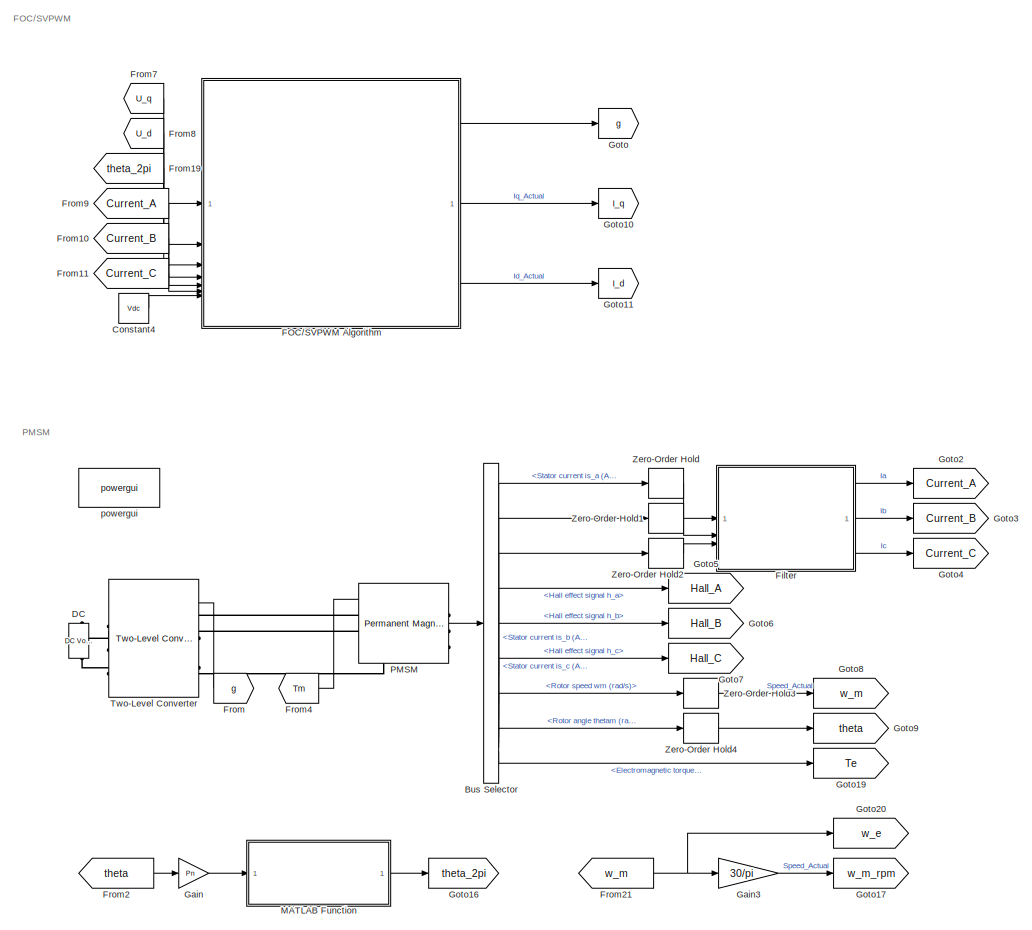
[diagram: root canvas - part 1/2, right side, full height]
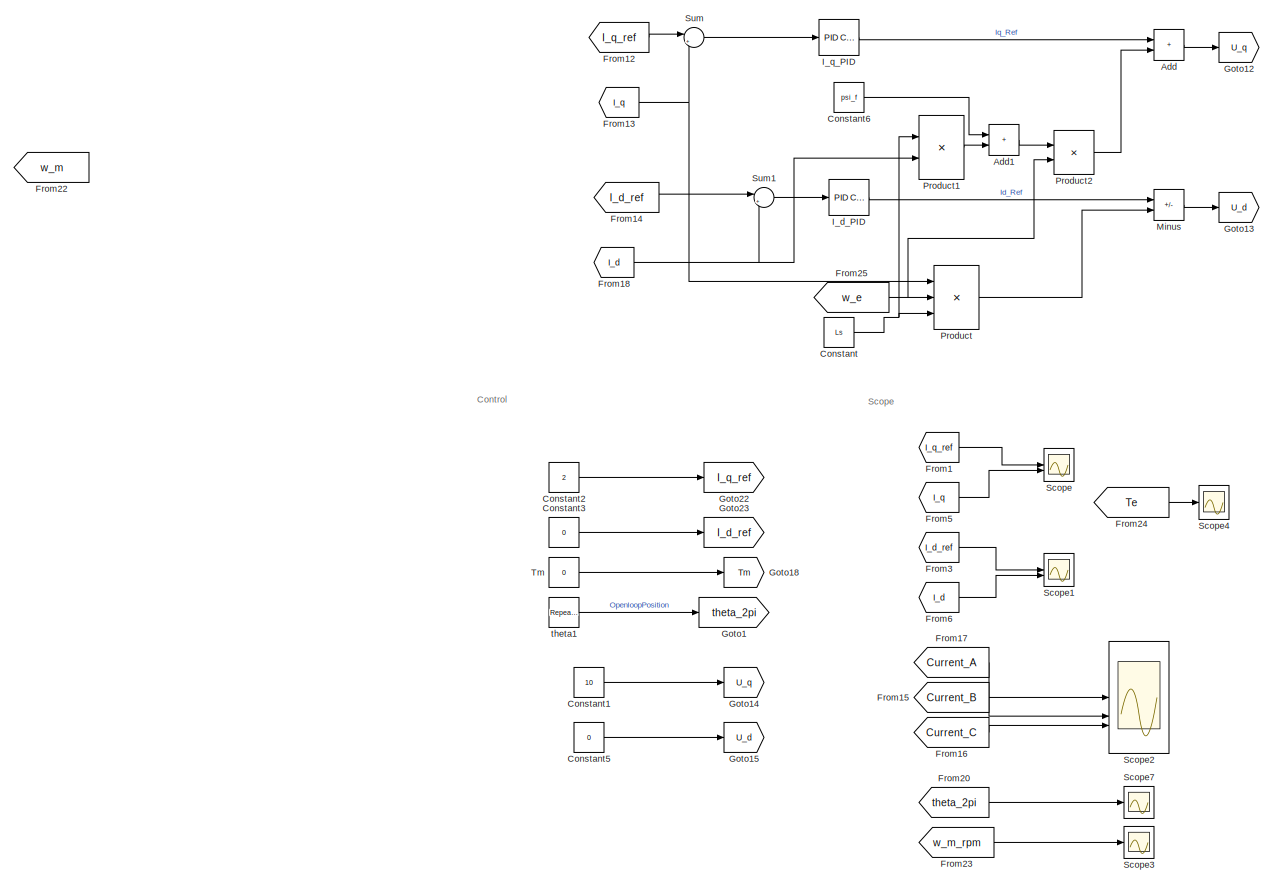
[diagram: root canvas - part 2/2, left side, full height]
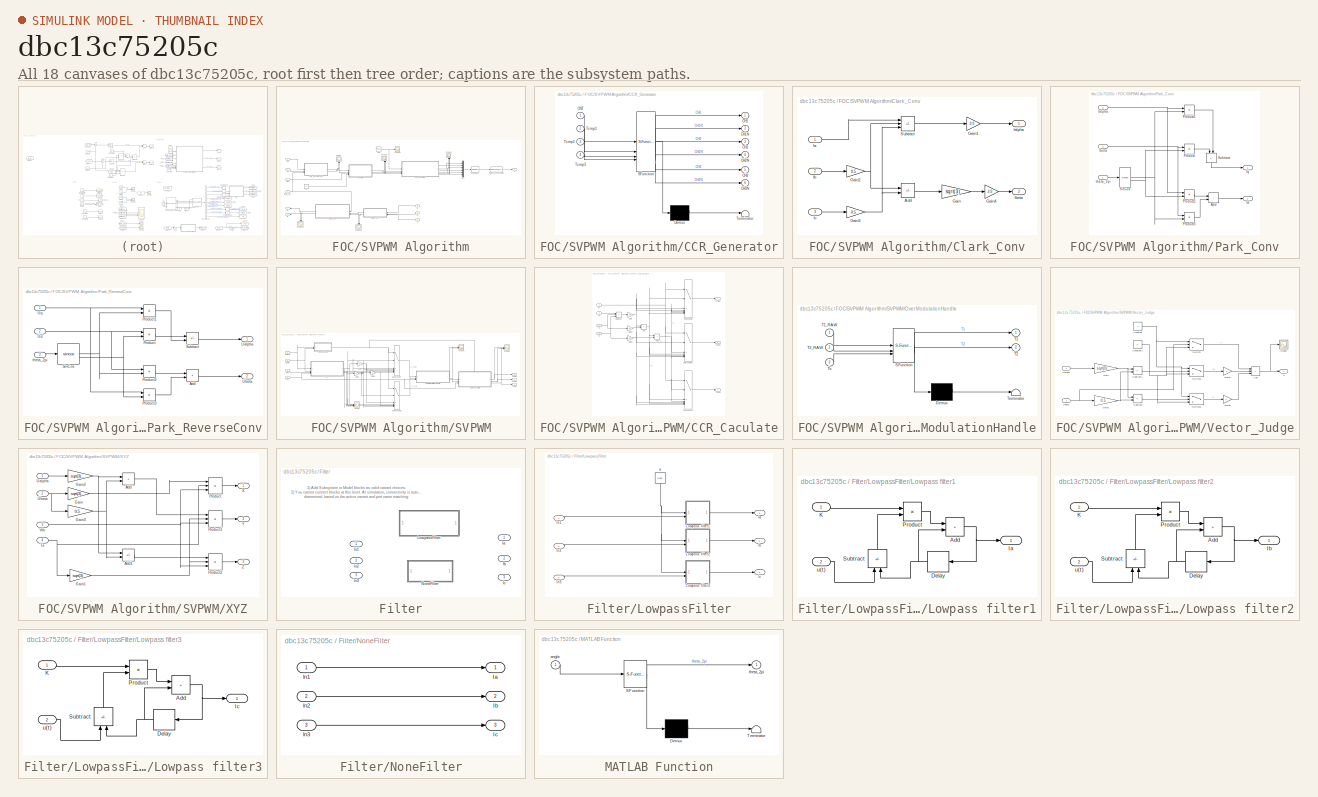
[diagram: thumbnail index - all 18 canvases of the model, root first then tree order]
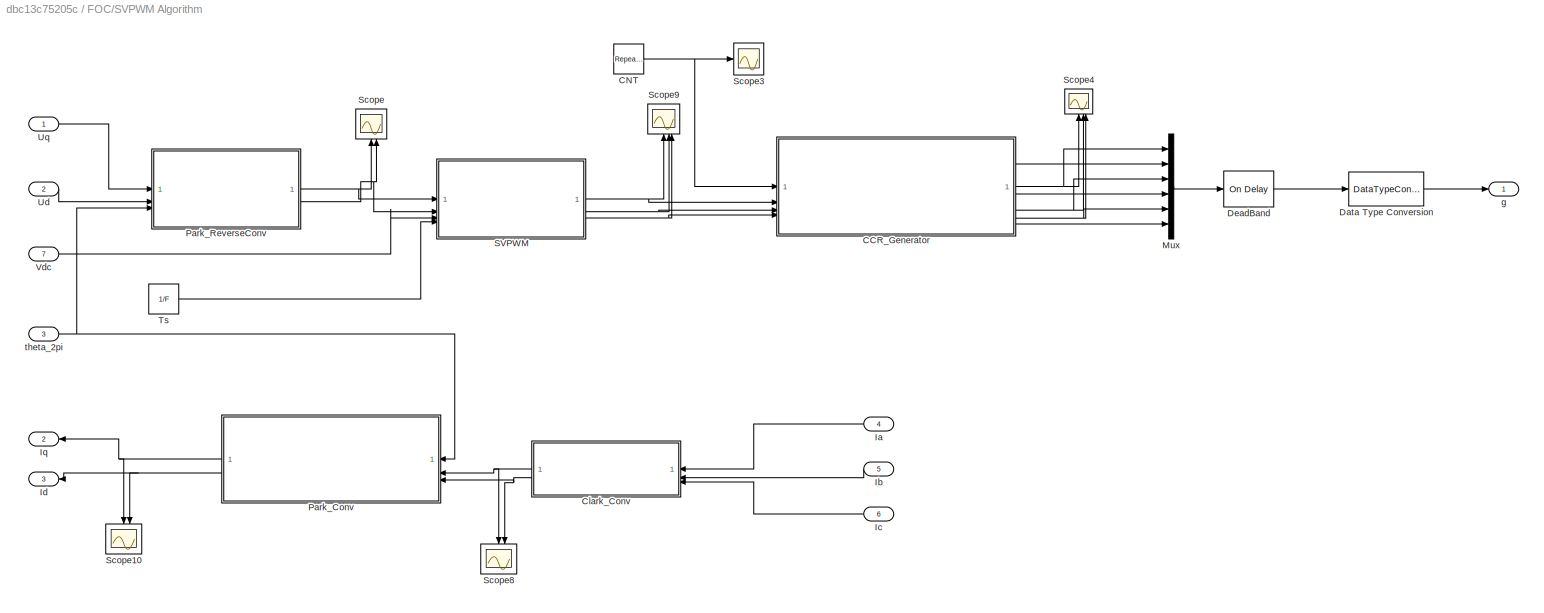
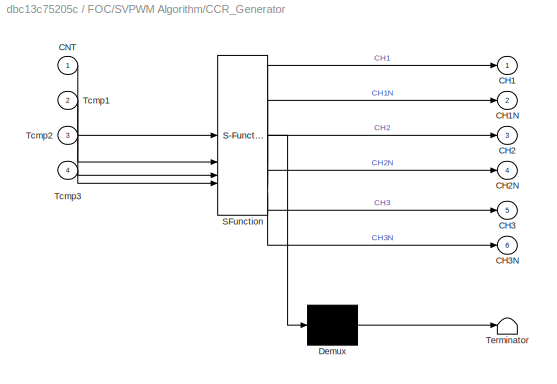
MODEL slx_dbc13c75205c
KIND model
CONFIG AbsTol = auto
CONFIG EnableMultiTasking = off
CONFIG FixedStep = 1e-6
CONFIG MaxStep = auto
CONFIG MinStep = auto
CONFIG RelTol = 1e-3
CONFIG SampleTimeConstraint = Unconstrained
CONFIG SolverName = FixedStepAuto
CONFIG StartTime = 0.0
CONFIG StopTime = 1
WORKSPACE source: mxarray member
WORKSPACE B = 0
WORKSPACE Current_Filter_On = 1
WORKSPACE F = 10000
WORKSPACE J = 5.8e-05
WORKSPACE Ls = 0.0005125
WORKSPACE Pn = 5
WORKSPACE Rs = 0.1445
WORKSPACE T_deadband = 3e-06
WORKSPACE Ts = 5e-05
WORKSPACE Vdc = 48
WORKSPACE id_ki = 0.01
WORKSPACE id_kp = 0.8
WORKSPACE iq_ki = 0.01
WORKSPACE iq_kp = 1.2
WORKSPACE psi_f = 0.0113
BLOCK [Sum] Add
  IconShape = rectangular
BLOCK [Sum] Add1
  IconShape = rectangular
BLOCK [BusSelector] Bus Selector
  OutputSignals = Stator current is_a (A),Stator current is_b (A),Stator current is_c (A),Hall effect signal h_a,Hall effect signal h_b,Hall effect signal h_c,Rotor speed wm (rad/s),Rotor angle thetam (rad),Electromagnetic torque Te (N*m)
BLOCK [Constant] Constant
  Value = Ls
BLOCK [Constant] Constant1
  Commented = on
  Value = 10
BLOCK [Constant] Constant2
  Value = 2
BLOCK [Constant] Constant3
  Value = 0
BLOCK [Constant] Constant4
  Value = Vdc
BLOCK [Constant] Constant5
  Commented = on
  Value = 0
BLOCK [Constant] Constant6
  Value = psi_f
BLOCK [Reference] DC  REF=spsDCVoltageSourceLib/DC Voltage Source
  NameLocation = left
  SourceBlock = spsDCVoltageSourceLib/DC Voltage Source
  SourceType = DC Voltage Source
BLOCK [SubSystem] FOC//SVPWM Algorithm
BLOCK [SubSystem] FOC//SVPWM Algorithm/CCR_Generator
  ErrorFcn = Stateflow.Translate.translate
  PermitHierarchicalResolution = ExplicitOnly
  SFBlockType = MATLAB Function
  TreatAsAtomicUnit = on
BLOCK [Demux] FOC//SVPWM Algorithm/CCR_Generator/ Demux 
  Outputs = 1
BLOCK [S-Function] FOC//SVPWM Algorithm/CCR_Generator/ SFunction 
  EnableBusSupport = off
  FunctionName = sf_sfun
  PortCounts = [4 7]
  SFcnIsStateOwnerBlock = off
  SFunctionDeploymentMode = off
  Tag = Stateflow S-Function 3
BLOCK [Terminator] FOC//SVPWM Algorithm/CCR_Generator/ Terminator 
BLOCK [Outport] FOC//SVPWM Algorithm/CCR_Generator/CH1
BLOCK [Outport] FOC//SVPWM Algorithm/CCR_Generator/CH1N
  Port = 2
BLOCK [Outport] FOC//SVPWM Algorithm/CCR_Generator/CH2
  Port = 3
BLOCK [Outport] FOC//SVPWM Algorithm/CCR_Generator/CH2N
  Port = 4
BLOCK [Outport] FOC//SVPWM Algorithm/CCR_Generator/CH3
  Port = 5
BLOCK [Outport] FOC//SVPWM Algorithm/CCR_Generator/CH3N
  Port = 6
BLOCK [Inport] FOC//SVPWM Algorithm/CCR_Generator/CNT
BLOCK [Inport] FOC//SVPWM Algorithm/CCR_Generator/Tcmp1
  Port = 2
BLOCK [Inport] FOC//SVPWM Algorithm/CCR_Generator/Tcmp2
  Port = 3
BLOCK [Inport] FOC//SVPWM Algorithm/CCR_Generator/Tcmp3
  Port = 4
BLOCK [Reference] FOC//SVPWM Algorithm/CNT  REF=simulink/Sources/Repeating
Sequence
  SourceBlock = simulink/Sources/Repeating\nSequence
  SourceType = Repeating table
BLOCK [SubSystem] FOC//SVPWM Algorithm/Clark_Conv
BLOCK [Sum] FOC//SVPWM Algorithm/Clark_Conv/Add
  IconShape = rectangular
  Inputs = +-
  OutDataTypeStr = double
BLOCK [Gain] FOC//SVPWM Algorithm/Clark_Conv/Gain
  Gain = sqrt(3)
  ParamDataTypeStr = double
BLOCK [Gain] FOC//SVPWM Algorithm/Clark_Conv/Gain1
  Gain = 2/3
BLOCK [Gain] FOC//SVPWM Algorithm/Clark_Conv/Gain2
  Gain = 0.5
BLOCK [Gain] FOC//SVPWM Algorithm/Clark_Conv/Gain3
  Gain = 0.5
BLOCK [Gain] FOC//SVPWM Algorithm/Clark_Conv/Gain4
  Gain = 2/3
BLOCK [Inport] FOC//SVPWM Algorithm/Clark_Conv/Ia
BLOCK [Outport] FOC//SVPWM Algorithm/Clark_Conv/Ialpha
BLOCK [Inport] FOC//SVPWM Algorithm/Clark_Conv/Ib
  Port = 2
BLOCK [Outport] FOC//SVPWM Algorithm/Clark_Conv/Ibeta
  Port = 2
BLOCK [Inport] FOC//SVPWM Algorithm/Clark_Conv/Ic
  Port = 3
BLOCK [Sum] FOC//SVPWM Algorithm/Clark_Conv/Subtract
  IconShape = rectangular
  Inputs = +--
  OutDataTypeStr = double
BLOCK [DataTypeConversion] FOC//SVPWM Algorithm/Data Type Conversion
  OutDataTypeStr = double
  RndMeth = Floor
  SaturateOnIntegerOverflow = off
BLOCK [Reference] FOC//SVPWM Algorithm/DeadBand  REF=spsOnDelayLib/On Delay
  LibrarySourceBlock = sps_lib/Control/On Delay
  SourceBlock = spsOnDelayLib/On Delay
  SourceType = On/Off Delay
BLOCK [Inport] FOC//SVPWM Algorithm/Ia
  Port = 4
BLOCK [Inport] FOC//SVPWM Algorithm/Ib
  Port = 5
BLOCK [Inport] FOC//SVPWM Algorithm/Ic
  Port = 6
BLOCK [Outport] FOC//SVPWM Algorithm/Id
  Port = 3
BLOCK [Outport] FOC//SVPWM Algorithm/Iq
  Port = 2
BLOCK [Mux] FOC//SVPWM Algorithm/Mux
  DisplayOption = bar
  Inputs = 6
BLOCK [SubSystem] FOC//SVPWM Algorithm/Park_Conv
BLOCK [Sum] FOC//SVPWM Algorithm/Park_Conv/Add
  IconShape = rectangular
BLOCK [Inport] FOC//SVPWM Algorithm/Park_Conv/Ialpha
  Port = 2
BLOCK [Inport] FOC//SVPWM Algorithm/Park_Conv/Ibeta
  Port = 3
BLOCK [Outport] FOC//SVPWM Algorithm/Park_Conv/Id
  Port = 2
BLOCK [Outport] FOC//SVPWM Algorithm/Park_Conv/Iq
BLOCK [Product] FOC//SVPWM Algorithm/Park_Conv/Product
BLOCK [Product] FOC//SVPWM Algorithm/Park_Conv/Product1
BLOCK [Product] FOC//SVPWM Algorithm/Park_Conv/Product2
BLOCK [Product] FOC//SVPWM Algorithm/Park_Conv/Product3
BLOCK [Trigonometry] FOC//SVPWM Algorithm/Park_Conv/SinCos
  Operator = sincos
BLOCK [Sum] FOC//SVPWM Algorithm/Park_Conv/Subtract
  IconShape = rectangular
  Inputs = +-
  NameLocation = right
BLOCK [Inport] FOC//SVPWM Algorithm/Park_Conv/theta_2pi
BLOCK [SubSystem] FOC//SVPWM Algorithm/Park_ReverseConv
BLOCK [Sum] FOC//SVPWM Algorithm/Park_ReverseConv/Add
  IconShape = rectangular
BLOCK [Product] FOC//SVPWM Algorithm/Park_ReverseConv/Product
BLOCK [Product] FOC//SVPWM Algorithm/Park_ReverseConv/Product1
BLOCK [Product] FOC//SVPWM Algorithm/Park_ReverseConv/Product2
BLOCK [Product] FOC//SVPWM Algorithm/Park_ReverseConv/Product3
BLOCK [Trigonometry] FOC//SVPWM Algorithm/Park_ReverseConv/SinCos
  Operator = sincos
BLOCK [Sum] FOC//SVPWM Algorithm/Park_ReverseConv/Subtract
  IconShape = rectangular
  Inputs = +-
BLOCK [Outport] FOC//SVPWM Algorithm/Park_ReverseConv/Ualpha
BLOCK [Outport] FOC//SVPWM Algorithm/Park_ReverseConv/Ubeta
  Port = 2
BLOCK [Inport] FOC//SVPWM Algorithm/Park_ReverseConv/Ud
  Port = 2
BLOCK [Inport] FOC//SVPWM Algorithm/Park_ReverseConv/Uq
BLOCK [Inport] FOC//SVPWM Algorithm/Park_ReverseConv/theta_2pi
  Port = 3
BLOCK [SubSystem] FOC//SVPWM Algorithm/SVPWM
BLOCK [SubSystem] FOC//SVPWM Algorithm/SVPWM/CCR_Caculate
  PortSchema = {"entries":[{"content":{"sides":[{"content":{"connectorIds":["In1","In2","In3"]},"type":"ConnectorPlacement.EquallySpacedRectSide","uuid":"41d89106-695f-4d7e-9c99-c52170b99868"},{"content":{"connectorIds":["Out1","Out2","Out3"],"side":"RIGHT"},"type":"ConnectorPlacement.EquallySpacedRectSide","uuid":"0fa1e6b9-7088-4c16-9dd3-c016449aae3e"},{"content":{"connectorIds":["In4"],"side":"TOP"},"type":"Co...<+271ch>
BLOCK [Sum] FOC//SVPWM Algorithm/SVPWM/CCR_Caculate/Add
  IconShape = rectangular
BLOCK [Sum] FOC//SVPWM Algorithm/SVPWM/CCR_Caculate/Add1
  IconShape = rectangular
BLOCK [Gain] FOC//SVPWM Algorithm/SVPWM/CCR_Caculate/Gain
  Gain = 1/4
BLOCK [Gain] FOC//SVPWM Algorithm/SVPWM/CCR_Caculate/Gain1
  Gain = 1/2
BLOCK [Gain] FOC//SVPWM Algorithm/SVPWM/CCR_Caculate/Gain2
  Gain = 1/2
BLOCK [MultiPortSwitch] FOC//SVPWM Algorithm/SVPWM/CCR_Caculate/Index Vector
  InputSameDT = off
  Inputs = 6
  SaturateOnIntegerOverflow = off
BLOCK [MultiPortSwitch] FOC//SVPWM Algorithm/SVPWM/CCR_Caculate/Index Vector1
  InputSameDT = off
  Inputs = 6
  SaturateOnIntegerOverflow = off
BLOCK [MultiPortSwitch] FOC//SVPWM Algorithm/SVPWM/CCR_Caculate/Index Vector2
  InputSameDT = off
  Inputs = 6
  SaturateOnIntegerOverflow = off
BLOCK [Inport] FOC//SVPWM Algorithm/SVPWM/CCR_Caculate/N
  Port = 4
BLOCK [Sum] FOC//SVPWM Algorithm/SVPWM/CCR_Caculate/Subtract
  IconShape = rectangular
  Inputs = +--
BLOCK [Inport] FOC//SVPWM Algorithm/SVPWM/CCR_Caculate/T1
BLOCK [Inport] FOC//SVPWM Algorithm/SVPWM/CCR_Caculate/T2
  Port = 2
BLOCK [Outport] FOC//SVPWM Algorithm/SVPWM/CCR_Caculate/Tcmp1
BLOCK [Outport] FOC//SVPWM Algorithm/SVPWM/CCR_Caculate/Tcmp2
  Port = 2
BLOCK [Outport] FOC//SVPWM Algorithm/SVPWM/CCR_Caculate/Tcmp3
  Port = 3
BLOCK [Inport] FOC//SVPWM Algorithm/SVPWM/CCR_Caculate/Ts
  Port = 3
BLOCK [Gain] FOC//SVPWM Algorithm/SVPWM/Gain
  Gain = -1
BLOCK [Gain] FOC//SVPWM Algorithm/SVPWM/Gain1
  Gain = -1
BLOCK [Gain] FOC//SVPWM Algorithm/SVPWM/Gain2
  Gain = -1
BLOCK [MultiPortSwitch] FOC//SVPWM Algorithm/SVPWM/Index Vector
  InputSameDT = off
  Inputs = 6
  SaturateOnIntegerOverflow = off
BLOCK [MultiPortSwitch] FOC//SVPWM Algorithm/SVPWM/Index Vector1
  InputSameDT = off
  Inputs = 6
  SaturateOnIntegerOverflow = off
BLOCK [SubSystem] FOC//SVPWM Algorithm/SVPWM/OverModulationHandle
  ErrorFcn = Stateflow.Translate.translate
  PermitHierarchicalResolution = ExplicitOnly
  SFBlockType = MATLAB Function
  TreatAsAtomicUnit = on
BLOCK [Demux] FOC//SVPWM Algorithm/SVPWM/OverModulationHandle/ Demux 
  Outputs = 1
BLOCK [S-Function] FOC//SVPWM Algorithm/SVPWM/OverModulationHandle/ SFunction 
  EnableBusSupport = off
  FunctionName = sf_sfun
  PortCounts = [3 3]
  SFcnIsStateOwnerBlock = off
  SFunctionDeploymentMode = off
  Tag = Stateflow S-Function 4
BLOCK [Terminator] FOC//SVPWM Algorithm/SVPWM/OverModulationHandle/ Terminator 
BLOCK [Outport] FOC//SVPWM Algorithm/SVPWM/OverModulationHandle/T1
BLOCK [Inport] FOC//SVPWM Algorithm/SVPWM/OverModulationHandle/T1_RAW
BLOCK [Outport] FOC//SVPWM Algorithm/SVPWM/OverModulationHandle/T2
  Port = 2
BLOCK [Inport] FOC//SVPWM Algorithm/SVPWM/OverModulationHandle/T2_RAW
  Port = 2
BLOCK [Inport] FOC//SVPWM Algorithm/SVPWM/OverModulationHandle/Ts
  Port = 3
BLOCK [Scope] FOC//SVPWM Algorithm/SVPWM/Scope
  Floating = off
  NumInputPorts = 3
  ScopeSpecificationString = Simulink.scopes.TimeScopeBlockCfg('CurrentConfiguration', extmgr.ConfigurationSet(extmgr.Configuration('Core','General UI',true),extmgr.Configuration('Core','Source UI',true),extmgr.Configuration('Sources','WiredSimulink',true,'DataLoggingVariableName','ScopeData2'),extmgr.Configuration('Visuals','Time Domain',true,'SerializedDisplays',{struct('MinYLimReal','-10840.7399','MaxYLimReal','10882.04333...<+1438ch>
BLOCK [Scope] FOC//SVPWM Algorithm/SVPWM/Scope1
  Floating = off
  NumInputPorts = 2
  ScopeSpecificationString = Simulink.scopes.TimeScopeBlockCfg('CurrentConfiguration', extmgr.ConfigurationSet(extmgr.Configuration('Core','General UI',true),extmgr.Configuration('Core','Source UI',true),extmgr.Configuration('Sources','WiredSimulink',true,'DataLoggingVariableName','ScopeData3'),extmgr.Configuration('Visuals','Time Domain',true,'SerializedDisplays',{struct('MinYLimReal','-0.000004','MaxYLimReal','0.000035','YL...<+1453ch>
BLOCK [Scope] FOC//SVPWM Algorithm/SVPWM/Scope2
  Floating = off
  NumInputPorts = 3
  ScopeSpecificationString = Simulink.scopes.TimeScopeBlockCfg('CurrentConfiguration', extmgr.ConfigurationSet(extmgr.Configuration('Core','General UI',true),extmgr.Configuration('Core','Source UI',true),extmgr.Configuration('Sources','WiredSimulink',true,'DataLoggingVariableName','ScopeData4'),extmgr.Configuration('Visuals','Time Domain',true,'SerializedDisplays',{struct('MinYLimReal','0.000001','MaxYLimReal','0.000024','YLa...<+1473ch>
BLOCK [Outport] FOC//SVPWM Algorithm/SVPWM/Tcmp1
BLOCK [Outport] FOC//SVPWM Algorithm/SVPWM/Tcmp2
  Port = 2
BLOCK [Outport] FOC//SVPWM Algorithm/SVPWM/Tcmp3
  Port = 3
BLOCK [Inport] FOC//SVPWM Algorithm/SVPWM/Ts
  Port = 4
BLOCK [Inport] FOC//SVPWM Algorithm/SVPWM/Ualpha
BLOCK [Inport] FOC//SVPWM Algorithm/SVPWM/Ubeta
  Port = 2
BLOCK [Inport] FOC//SVPWM Algorithm/SVPWM/Vdc
  Port = 3
BLOCK [SubSystem] FOC//SVPWM Algorithm/SVPWM/Vector_Judge
BLOCK [Sum] FOC//SVPWM Algorithm/SVPWM/Vector_Judge/Add
  IconShape = rectangular
  Inputs = +++
BLOCK [Constant] FOC//SVPWM Algorithm/SVPWM/Vector_Judge/Constant
BLOCK [Constant] FOC//SVPWM Algorithm/SVPWM/Vector_Judge/Constant1
  Value = 0
BLOCK [Gain] FOC//SVPWM Algorithm/SVPWM/Vector_Judge/Gain
  Gain = sqrt(3)/2
BLOCK [Gain] FOC//SVPWM Algorithm/SVPWM/Vector_Judge/Gain1
  Gain = 0.5
BLOCK [Gain] FOC//SVPWM Algorithm/SVPWM/Vector_Judge/Gain2
  Gain = 2
BLOCK [Gain] FOC//SVPWM Algorithm/SVPWM/Vector_Judge/Gain3
  Gain = 4
BLOCK [Outport] FOC//SVPWM Algorithm/SVPWM/Vector_Judge/N
BLOCK [Scope] FOC//SVPWM Algorithm/SVPWM/Vector_Judge/Scope
  Floating = off
  NumInputPorts = 1
  ScopeSpecificationString = Simulink.scopes.TimeScopeBlockCfg('CurrentConfiguration', extmgr.ConfigurationSet(extmgr.Configuration('Core','General UI',true),extmgr.Configuration('Core','Source UI',true),extmgr.Configuration('Sources','WiredSimulink',true,'DataLoggingVariableName','ScopeData1'),extmgr.Configuration('Visuals','Time Domain',true,'SerializedDisplays',{struct('MinYLimReal','0.375','MaxYLimReal','6.625','YLabelRea...<+1426ch>
BLOCK [Sum] FOC//SVPWM Algorithm/SVPWM/Vector_Judge/Subtract
  IconShape = rectangular
  Inputs = --
BLOCK [Sum] FOC//SVPWM Algorithm/SVPWM/Vector_Judge/Subtract1
  IconShape = rectangular
  Inputs = +-
BLOCK [Switch] FOC//SVPWM Algorithm/SVPWM/Vector_Judge/Switch
  Criteria = u2 > Threshold
  InputSameDT = off
  SaturateOnIntegerOverflow = off
BLOCK [Switch] FOC//SVPWM Algorithm/SVPWM/Vector_Judge/Switch1
  Criteria = u2 > Threshold
  InputSameDT = off
  SaturateOnIntegerOverflow = off
BLOCK [Switch] FOC//SVPWM Algorithm/SVPWM/Vector_Judge/Switch2
  Criteria = u2 > Threshold
  InputSameDT = off
  SaturateOnIntegerOverflow = off
BLOCK [Inport] FOC//SVPWM Algorithm/SVPWM/Vector_Judge/Ualpha
BLOCK [Inport] FOC//SVPWM Algorithm/SVPWM/Vector_Judge/Ubeta
  Port = 2
BLOCK [SubSystem] FOC//SVPWM Algorithm/SVPWM/XYZ
BLOCK [Sum] FOC//SVPWM Algorithm/SVPWM/XYZ/Add
  IconShape = rectangular
BLOCK [Sum] FOC//SVPWM Algorithm/SVPWM/XYZ/Add1
  IconShape = rectangular
  Inputs = -+
BLOCK [Gain] FOC//SVPWM Algorithm/SVPWM/XYZ/Gain
  Gain = sqrt(3)
BLOCK [Gain] FOC//SVPWM Algorithm/SVPWM/XYZ/Gain1
  Gain = sqrt(3)
BLOCK [Gain] FOC//SVPWM Algorithm/SVPWM/XYZ/Gain2
  Gain = sqrt(3)/2
BLOCK [Gain] FOC//SVPWM Algorithm/SVPWM/XYZ/Gain3
  Gain = 0.5
BLOCK [Product] FOC//SVPWM Algorithm/SVPWM/XYZ/Product
  Inputs = **/
BLOCK [Product] FOC//SVPWM Algorithm/SVPWM/XYZ/Product1
  Inputs = **/
BLOCK [Product] FOC//SVPWM Algorithm/SVPWM/XYZ/Product2
  Inputs = **/
BLOCK [Inport] FOC//SVPWM Algorithm/SVPWM/XYZ/Ts
  Port = 4
BLOCK [Inport] FOC//SVPWM Algorithm/SVPWM/XYZ/Ualpha
BLOCK [Inport] FOC//SVPWM Algorithm/SVPWM/XYZ/Ubeta
  Port = 2
BLOCK [Inport] FOC//SVPWM Algorithm/SVPWM/XYZ/Vdc
  Port = 3
BLOCK [Outport] FOC//SVPWM Algorithm/SVPWM/XYZ/X
BLOCK [Outport] FOC//SVPWM Algorithm/SVPWM/XYZ/Y
  Port = 2
BLOCK [Outport] FOC//SVPWM Algorithm/SVPWM/XYZ/Z
  Port = 3
BLOCK [Scope] FOC//SVPWM Algorithm/Scope
  Floating = off
  NameLocation = right
  NumInputPorts = 2
  ScopeSpecificationString = Simulink.scopes.TimeScopeBlockCfg('CurrentConfiguration', extmgr.ConfigurationSet(extmgr.Configuration('Core','General UI',true,'FigureColor',[1 1 1]),extmgr.Configuration('Core','Source UI',true),extmgr.Configuration('Sources','WiredSimulink',true),extmgr.Configuration('Visuals','Time Domain',true,'SerializedDisplays',{struct('MinYLimReal','-26.02261','MaxYLimReal','26.01134','YLabelReal','电压(V)'...<+1729ch>
BLOCK [Scope] FOC//SVPWM Algorithm/Scope10
  Floating = off
  NameLocation = right
  NumInputPorts = 2
  ScopeSpecificationString = Simulink.scopes.TimeScopeBlockCfg('CurrentConfiguration', extmgr.ConfigurationSet(extmgr.Configuration('Core','General UI',true,'FigureColor',[1 1 1]),extmgr.Configuration('Core','Source UI',true),extmgr.Configuration('Sources','WiredSimulink',true,'DataLoggingVariableName','ScopeData1'),extmgr.Configuration('Visuals','Time Domain',true,'SerializedDisplays',{struct('MinYLimReal','-131.50736','MaxY...<+1695ch>
BLOCK [Scope] FOC//SVPWM Algorithm/Scope3
  Floating = off
  NumInputPorts = 1
  ScopeSpecificationString = Simulink.scopes.TimeScopeBlockCfg('CurrentConfiguration', extmgr.ConfigurationSet(extmgr.Configuration('Core','General UI',true),extmgr.Configuration('Core','Source UI',true),extmgr.Configuration('Sources','WiredSimulink',true,'DataLoggingVariableName','ScopeData1'),extmgr.Configuration('Visuals','Time Domain',true,'SerializedDisplays',{struct('MinYLimReal','-0.000003','MaxYLimReal','0.000028','YL...<+1469ch>
BLOCK [Scope] FOC//SVPWM Algorithm/Scope4
  Floating = off
  NameLocation = right
  NumInputPorts = 3
  ScopeSpecificationString = Simulink.scopes.TimeScopeBlockCfg('CurrentConfiguration', extmgr.ConfigurationSet(extmgr.Configuration('Core','General UI',true,'FigureColor',[1 1 1]),extmgr.Configuration('Core','Source UI',true),extmgr.Configuration('Sources','WiredSimulink',true,'DataLoggingVariableName','ScopeData2'),extmgr.Configuration('Visuals','Time Domain',true,'SerializedDisplays',{struct('MinYLimReal','-0.125','MaxYLimR...<+3284ch>
BLOCK [Scope] FOC//SVPWM Algorithm/Scope8
  Floating = off
  NameLocation = right
  NumInputPorts = 2
  ScopeSpecificationString = Simulink.scopes.TimeScopeBlockCfg('CurrentConfiguration', extmgr.ConfigurationSet(extmgr.Configuration('Core','General UI',true,'FigureColor',[1 1 1]),extmgr.Configuration('Core','Source UI',true),extmgr.Configuration('Sources','WiredSimulink',true,'DataLoggingVariableName','ScopeData7'),extmgr.Configuration('Visuals','Time Domain',true,'SerializedDisplays',{struct('MinYLimReal','-0.01076','MaxYLi...<+1786ch>
BLOCK [Scope] FOC//SVPWM Algorithm/Scope9
  Floating = off
  NameLocation = right
  NumInputPorts = 3
  ScopeSpecificationString = Simulink.scopes.TimeScopeBlockCfg('CurrentConfiguration', extmgr.ConfigurationSet(extmgr.Configuration('Core','General UI',true,'FigureColor',[1 1 1]),extmgr.Configuration('Core','Source UI',true),extmgr.Configuration('Sources','WiredSimulink',true,'DataLoggingVariableName','ScopeData1'),extmgr.Configuration('Visuals','Time Domain',true,'SerializedDisplays',{struct('MinYLimReal','0.000003','MaxYLi...<+1787ch>
BLOCK [Constant] FOC//SVPWM Algorithm/Ts
  Value = 1/F
BLOCK [Inport] FOC//SVPWM Algorithm/Ud
  Port = 2
BLOCK [Inport] FOC//SVPWM Algorithm/Uq
BLOCK [Inport] FOC//SVPWM Algorithm/Vdc
  Port = 7
BLOCK [Outport] FOC//SVPWM Algorithm/g
BLOCK [Inport] FOC//SVPWM Algorithm/theta_2pi
  Port = 3
BLOCK [SubSystem] Filter
  Variant = on
BLOCK [Outport] Filter/Ia
BLOCK [Outport] Filter/Ib
  Port = 2
BLOCK [Outport] Filter/Ic
  Port = 3
BLOCK [SubSystem] Filter/LowpassFilter
  VariantControl = Current_Filter_On==1
BLOCK [Outport] Filter/LowpassFilter/Ia
BLOCK [Outport] Filter/LowpassFilter/Ib
  Port = 2
BLOCK [Outport] Filter/LowpassFilter/Ic
  Port = 3
BLOCK [SubSystem] Filter/LowpassFilter/Lowpass filter1
BLOCK [Sum] Filter/LowpassFilter/Lowpass filter1/Add
  IconShape = rectangular
BLOCK [Delay] Filter/LowpassFilter/Lowpass filter1/Delay
  DelayLength = 1
  InputPortMap = u0
BLOCK [Outport] Filter/LowpassFilter/Lowpass filter1/Ia
BLOCK [Inport] Filter/LowpassFilter/Lowpass filter1/K
BLOCK [Product] Filter/LowpassFilter/Lowpass filter1/Product
BLOCK [Sum] Filter/LowpassFilter/Lowpass filter1/Subtract
  IconShape = rectangular
  Inputs = +-
  NameLocation = left
BLOCK [Inport] Filter/LowpassFilter/Lowpass filter1/u(t)
  Port = 2
BLOCK [SubSystem] Filter/LowpassFilter/Lowpass filter2
BLOCK [Sum] Filter/LowpassFilter/Lowpass filter2/Add
  IconShape = rectangular
BLOCK [Delay] Filter/LowpassFilter/Lowpass filter2/Delay
  DelayLength = 1
  InputPortMap = u0
BLOCK [Outport] Filter/LowpassFilter/Lowpass filter2/Ib
BLOCK [Inport] Filter/LowpassFilter/Lowpass filter2/K
BLOCK [Product] Filter/LowpassFilter/Lowpass filter2/Product
BLOCK [Sum] Filter/LowpassFilter/Lowpass filter2/Subtract
  IconShape = rectangular
  Inputs = +-
  NameLocation = left
BLOCK [Inport] Filter/LowpassFilter/Lowpass filter2/u(t)
  Port = 2
BLOCK [SubSystem] Filter/LowpassFilter/Lowpass filter3
BLOCK [Sum] Filter/LowpassFilter/Lowpass filter3/Add
  IconShape = rectangular
BLOCK [Delay] Filter/LowpassFilter/Lowpass filter3/Delay
  DelayLength = 1
  InputPortMap = u0
BLOCK [Outport] Filter/LowpassFilter/Lowpass filter3/Ic
BLOCK [Inport] Filter/LowpassFilter/Lowpass filter3/K
BLOCK [Product] Filter/LowpassFilter/Lowpass filter3/Product
BLOCK [Sum] Filter/LowpassFilter/Lowpass filter3/Subtract
  IconShape = rectangular
  Inputs = +-
  NameLocation = left
BLOCK [Inport] Filter/LowpassFilter/Lowpass filter3/u(t)
  Port = 2
BLOCK [Constant] Filter/LowpassFilter/a
  NameLocation = left
  Value = 0.001
BLOCK [Inport] Filter/LowpassFilter/ln1
BLOCK [Inport] Filter/LowpassFilter/ln2
  Port = 2
BLOCK [Inport] Filter/LowpassFilter/ln3
  Port = 3
BLOCK [SubSystem] Filter/NoneFilter
  VariantControl = Current_Filter_On==0
BLOCK [Outport] Filter/NoneFilter/Ia
BLOCK [Outport] Filter/NoneFilter/Ib
  Port = 2
BLOCK [Outport] Filter/NoneFilter/Ic
  Port = 3
BLOCK [Inport] Filter/NoneFilter/ln1
BLOCK [Inport] Filter/NoneFilter/ln2
  Port = 2
BLOCK [Inport] Filter/NoneFilter/ln3
  Port = 3
BLOCK [Inport] Filter/ln1
BLOCK [Inport] Filter/ln2
  Port = 2
BLOCK [Inport] Filter/ln3
  Port = 3
BLOCK [From] From
  GotoTag = g
  NameLocation = top
BLOCK [From] From1
  GotoTag = I_q_ref
BLOCK [From] From10
  GotoTag = Current_B
BLOCK [From] From11
  GotoTag = Current_C
BLOCK [From] From12
  GotoTag = I_q_ref
BLOCK [From] From13
  GotoTag = I_q
BLOCK [From] From14
  GotoTag = I_d_ref
BLOCK [From] From15
  GotoTag = Current_B
BLOCK [From] From16
  GotoTag = Current_C
BLOCK [From] From17
  GotoTag = Current_A
BLOCK [From] From18
  GotoTag = I_d
BLOCK [From] From19
  GotoTag = theta_2pi
BLOCK [From] From2
  GotoTag = theta
BLOCK [From] From20
  GotoTag = theta_2pi
BLOCK [From] From21
  GotoTag = w_m
BLOCK [From] From22
  GotoTag = w_m
BLOCK [From] From23
  GotoTag = w_m_rpm
BLOCK [From] From24
  GotoTag = Te
BLOCK [From] From25
  GotoTag = w_e
BLOCK [From] From3
  GotoTag = I_d_ref
BLOCK [From] From4
  GotoTag = Tm
BLOCK [From] From5
  GotoTag = I_q
BLOCK [From] From6
  GotoTag = I_d
BLOCK [From] From7
  GotoTag = U_q
BLOCK [From] From8
  GotoTag = U_d
BLOCK [From] From9
  GotoTag = Current_A
BLOCK [Gain] Gain
  Gain = Pn
BLOCK [Gain] Gain3
  Gain = 30/pi
  NameLocation = top
BLOCK [Goto] Goto
  GotoTag = g
BLOCK [Goto] Goto1
  Commented = on
  GotoTag = theta_2pi
BLOCK [Goto] Goto10
  GotoTag = I_q
BLOCK [Goto] Goto11
  GotoTag = I_d
BLOCK [Goto] Goto12
  GotoTag = U_q
BLOCK [Goto] Goto13
  GotoTag = U_d
BLOCK [Goto] Goto14
  Commented = on
  GotoTag = U_q
BLOCK [Goto] Goto15
  Commented = on
  GotoTag = U_d
BLOCK [Goto] Goto16
  GotoTag = theta_2pi
BLOCK [Goto] Goto17
  GotoTag = w_m_rpm
BLOCK [Goto] Goto18
  GotoTag = Tm
BLOCK [Goto] Goto19
  GotoTag = Te
BLOCK [Goto] Goto2
  GotoTag = Current_A
BLOCK [Goto] Goto20
  GotoTag = w_e
BLOCK [Goto] Goto22
  GotoTag = I_q_ref
BLOCK [Goto] Goto23
  GotoTag = I_d_ref
BLOCK [Goto] Goto3
  GotoTag = Current_B
BLOCK [Goto] Goto4
  GotoTag = Current_C
BLOCK [Goto] Goto5
  GotoTag = Hall_A
BLOCK [Goto] Goto6
  GotoTag = Hall_B
BLOCK [Goto] Goto7
  GotoTag = Hall_C
BLOCK [Goto] Goto8
  GotoTag = w_m
BLOCK [Goto] Goto9
  GotoTag = theta
BLOCK [Reference] I_d_PID  REF=slpidlib/PID Controller
  SourceBlock = slpidlib/PID Controller
  SourceType = PID 1dof
BLOCK [Reference] I_q_PID  REF=slpidlib/PID Controller
  SourceBlock = slpidlib/PID Controller
  SourceType = PID 1dof
BLOCK [SubSystem] MATLAB Function
  ErrorFcn = Stateflow.Translate.translate
  NameLocation = top
  PermitHierarchicalResolution = ExplicitOnly
  SFBlockType = MATLAB Function
  TreatAsAtomicUnit = on
BLOCK [Demux] MATLAB Function/ Demux 
  Outputs = 1
BLOCK [S-Function] MATLAB Function/ SFunction 
  EnableBusSupport = off
  FunctionName = sf_sfun
  PortCounts = [1 2]
  SFcnIsStateOwnerBlock = off
  SFunctionDeploymentMode = off
  Tag = Stateflow S-Function 1
BLOCK [Terminator] MATLAB Function/ Terminator 
BLOCK [Inport] MATLAB Function/angle
BLOCK [Outport] MATLAB Function/theta_2pi
BLOCK [Sum] Minus
  IconShape = rectangular
  Inputs = +-
BLOCK [Reference] PMSM  REF=spsPermanentMagnetSynchronousMachineLib/Permanent Magnet
Synchronous Machine
  SourceBlock = spsPermanentMagnetSynchronousMachineLib/Permanent Magnet\nSynchronous Machine
  SourceType = Permanent Magnet Synchronous Machine
BLOCK [Product] Product
  Inputs = 3
BLOCK [Product] Product1
BLOCK [Product] Product2
BLOCK [Scope] Scope
  Floating = off
  NumInputPorts = 2
  ScopeSpecificationString = Simulink.scopes.TimeScopeBlockCfg('CurrentConfiguration', extmgr.ConfigurationSet(extmgr.Configuration('Core','General UI',true),extmgr.Configuration('Core','Source UI',true),extmgr.Configuration('Sources','WiredSimulink',true,'DataLoggingVariableName','ScopeData1'),extmgr.Configuration('Visuals','Time Domain',true,'SerializedDisplays',{struct('MinYLimReal','-1.86617','MaxYLimReal','11.31846','YLa...<+1458ch>
BLOCK [Scope] Scope1
  Floating = off
  NumInputPorts = 2
  ScopeSpecificationString = Simulink.scopes.TimeScopeBlockCfg('CurrentConfiguration', extmgr.ConfigurationSet(extmgr.Configuration('Core','General UI',true),extmgr.Configuration('Core','Source UI',true),extmgr.Configuration('Sources','WiredSimulink',true,'DataLoggingVariableName','ScopeData2'),extmgr.Configuration('Visuals','Time Domain',true,'SerializedDisplays',{struct('MinYLimReal','-0.06358','MaxYLimReal','0.07456','YLab...<+1410ch>
BLOCK [Scope] Scope2
  Floating = off
  NumInputPorts = 3
  ScopeSpecificationString = Simulink.scopes.TimeScopeBlockCfg('CurrentConfiguration', extmgr.ConfigurationSet(extmgr.Configuration('Core','General UI',true),extmgr.Configuration('Core','Source UI',true),extmgr.Configuration('Sources','WiredSimulink',true,'DataLoggingVariableName','ScopeData3'),extmgr.Configuration('Visuals','Time Domain',true,'SerializedDisplays',{struct('MinYLimReal','-0.4001','MaxYLimReal','0.386','YLabelR...<+1507ch>
BLOCK [Scope] Scope3
  Floating = off
  NumInputPorts = 1
  ScopeSpecificationString = Simulink.scopes.TimeScopeBlockCfg('CurrentConfiguration', extmgr.ConfigurationSet(extmgr.Configuration('Core','General UI',true),extmgr.Configuration('Core','Source UI',true),extmgr.Configuration('Sources','WiredSimulink',true,'DataLoggingVariableName','ScopeData1'),extmgr.Configuration('Visuals','Time Domain',true,'SerializedDisplays',{struct('MinYLimReal','-612.64634','MaxYLimReal','5513.81708',...<+1416ch>
BLOCK [Scope] Scope4
  Floating = off
  NumInputPorts = 1
  ScopeSpecificationString = Simulink.scopes.TimeScopeBlockCfg('CurrentConfiguration', extmgr.ConfigurationSet(extmgr.Configuration('Core','General UI',true),extmgr.Configuration('Core','Source UI',true),extmgr.Configuration('Sources','WiredSimulink',true,'DataLoggingVariableName','ScopeData1'),extmgr.Configuration('Visuals','Time Domain',true,'SerializedDisplays',{struct('MinYLimReal','-0.01365','MaxYLimReal','0.12288','YLab...<+1464ch>
BLOCK [Scope] Scope7
  Floating = off
  NumInputPorts = 1
  ScopeSpecificationString = Simulink.scopes.TimeScopeBlockCfg('CurrentConfiguration', extmgr.ConfigurationSet(extmgr.Configuration('Core','General UI',true),extmgr.Configuration('Core','Source UI',true),extmgr.Configuration('Sources','WiredSimulink',true,'DataLoggingVariableName','ScopeData4'),extmgr.Configuration('Visuals','Time Domain',true,'SerializedDisplays',{struct('MinYLimReal','-0.16536','MaxYLimReal','6.37352','YLab...<+1558ch>
BLOCK [Sum] Sum
  Inputs = |+-
BLOCK [Sum] Sum1
  Inputs = |+-
BLOCK [Constant] Tm
  Value = 0
BLOCK [Reference] Two-Level Converter  REF=spsTwoLevelConverterLib/Two-Level Converter
  NameLocation = top
  SourceBlock = spsTwoLevelConverterLib/Two-Level Converter
  SourceType = Two-Level Converter
BLOCK [ZeroOrderHold] Zero-Order Hold
  Commented = through
  SampleTime = 1/F
BLOCK [ZeroOrderHold] Zero-Order Hold1
  Commented = through
  SampleTime = 1/F
BLOCK [ZeroOrderHold] Zero-Order Hold2
  Commented = through
  SampleTime = 1/F
BLOCK [ZeroOrderHold] Zero-Order Hold3
  Commented = through
  SampleTime = 1/F
BLOCK [ZeroOrderHold] Zero-Order Hold4
  Commented = through
  SampleTime = 1/F
BLOCK [Reference] powergui  REF=spspowerguiLib/powergui
  Priority = 1
  SourceBlock = spspowerguiLib/powergui
  SourceType = PSB option menu block
BLOCK [Reference] theta1  REF=simulink/Sources/Repeating
Sequence
  Commented = on
  SourceBlock = simulink/Sources/Repeating\nSequence
  SourceType = Repeating table
ANNOTATION (root): Control
ANNOTATION (root): FOC/SVPWM
ANNOTATION (root): PMSM
ANNOTATION (root): Scope
ANNOTATION Filter: 1) Add Subsystem or Model blocks as valid variant choices. 2) You cannot connect blocks at this level. At simulation, connectivity is automatically determined, based on the active variant and port name matching.
LINE Add1:1 -> Product2:1
LINE Add:1 -> Goto12:1
LINE Bus Selector:1 -> Zero-Order Hold:1
LINE Bus Selector:2 -> Zero-Order Hold1:1
LINE Bus Selector:3 -> Zero-Order Hold2:1
LINE Bus Selector:4 -> Goto5:1
LINE Bus Selector:5 -> Goto6:1
LINE Bus Selector:6 -> Goto7:1
LINE Bus Selector:7 -> Zero-Order Hold3:1
LINE Bus Selector:8 -> Zero-Order Hold4:1
LINE Bus Selector:9 -> Goto19:1
LINE Constant1:1 -> Goto14:1
LINE Constant2:1 -> Goto22:1
LINE Constant3:1 -> Goto23:1
LINE Constant4:1 -> FOC//SVPWM Algorithm:7
LINE Constant5:1 -> Goto15:1
LINE Constant6:1 -> Add1:1
NET Constant:1 -> Product1:1, Product:3
NET FOC//SVPWM Algorithm/CCR_Generator:1 -> FOC//SVPWM Algorithm/Mux:1, FOC//SVPWM Algorithm/Scope4:1
LINE FOC//SVPWM Algorithm/CCR_Generator:2 -> FOC//SVPWM Algorithm/Mux:2
NET FOC//SVPWM Algorithm/CCR_Generator:3 -> FOC//SVPWM Algorithm/Mux:3, FOC//SVPWM Algorithm/Scope4:2
LINE FOC//SVPWM Algorithm/CCR_Generator:4 -> FOC//SVPWM Algorithm/Mux:4
NET FOC//SVPWM Algorithm/CCR_Generator:5 -> FOC//SVPWM Algorithm/Mux:5, FOC//SVPWM Algorithm/Scope4:3
LINE FOC//SVPWM Algorithm/CCR_Generator:6 -> FOC//SVPWM Algorithm/Mux:6
NET FOC//SVPWM Algorithm/CNT:1 -> FOC//SVPWM Algorithm/CCR_Generator:1, FOC//SVPWM Algorithm/Scope3:1
LINE FOC//SVPWM Algorithm/Clark_Conv/Add:1 -> FOC//SVPWM Algorithm/Clark_Conv/Gain:1
LINE FOC//SVPWM Algorithm/Clark_Conv/Gain1:1 -> FOC//SVPWM Algorithm/Clark_Conv/Ialpha:1
NET FOC//SVPWM Algorithm/Clark_Conv/Gain2:1 -> FOC//SVPWM Algorithm/Clark_Conv/Add:1, FOC//SVPWM Algorithm/Clark_Conv/Subtract:2
NET FOC//SVPWM Algorithm/Clark_Conv/Gain3:1 -> FOC//SVPWM Algorithm/Clark_Conv/Add:2, FOC//SVPWM Algorithm/Clark_Conv/Subtract:3
LINE FOC//SVPWM Algorithm/Clark_Conv/Gain4:1 -> FOC//SVPWM Algorithm/Clark_Conv/Ibeta:1
LINE FOC//SVPWM Algorithm/Clark_Conv/Gain:1 -> FOC//SVPWM Algorithm/Clark_Conv/Gain4:1
LINE FOC//SVPWM Algorithm/Clark_Conv/Ia:1 -> FOC//SVPWM Algorithm/Clark_Conv/Subtract:1
LINE FOC//SVPWM Algorithm/Clark_Conv/Ib:1 -> FOC//SVPWM Algorithm/Clark_Conv/Gain2:1
LINE FOC//SVPWM Algorithm/Clark_Conv/Ic:1 -> FOC//SVPWM Algorithm/Clark_Conv/Gain3:1
LINE FOC//SVPWM Algorithm/Clark_Conv/Subtract:1 -> FOC//SVPWM Algorithm/Clark_Conv/Gain1:1
NET FOC//SVPWM Algorithm/Clark_Conv:1 -> FOC//SVPWM Algorithm/Park_Conv:2, FOC//SVPWM Algorithm/Scope8:1
NET FOC//SVPWM Algorithm/Clark_Conv:2 -> FOC//SVPWM Algorithm/Park_Conv:3, FOC//SVPWM Algorithm/Scope8:2
LINE FOC//SVPWM Algorithm/Data Type Conversion:1 -> FOC//SVPWM Algorithm/g:1
LINE FOC//SVPWM Algorithm/DeadBand:1 -> FOC//SVPWM Algorithm/Data Type Conversion:1
LINE FOC//SVPWM Algorithm/Ia:1 -> FOC//SVPWM Algorithm/Clark_Conv:1
LINE FOC//SVPWM Algorithm/Ib:1 -> FOC//SVPWM Algorithm/Clark_Conv:2
LINE FOC//SVPWM Algorithm/Ic:1 -> FOC//SVPWM Algorithm/Clark_Conv:3
LINE FOC//SVPWM Algorithm/Mux:1 -> FOC//SVPWM Algorithm/DeadBand:1
LINE FOC//SVPWM Algorithm/Park_Conv/Add:1 -> FOC//SVPWM Algorithm/Park_Conv/Id:1
NET FOC//SVPWM Algorithm/Park_Conv/Ialpha:1 -> FOC//SVPWM Algorithm/Park_Conv/Product1:1, FOC//SVPWM Algorithm/Park_Conv/Product2:1
NET FOC//SVPWM Algorithm/Park_Conv/Ibeta:1 -> FOC//SVPWM Algorithm/Park_Conv/Product3:1, FOC//SVPWM Algorithm/Park_Conv/Product:1
LINE FOC//SVPWM Algorithm/Park_Conv/Product1:1 -> FOC//SVPWM Algorithm/Park_Conv/Subtract:2
LINE FOC//SVPWM Algorithm/Park_Conv/Product2:1 -> FOC//SVPWM Algorithm/Park_Conv/Add:1
LINE FOC//SVPWM Algorithm/Park_Conv/Product3:1 -> FOC//SVPWM Algorithm/Park_Conv/Add:2
LINE FOC//SVPWM Algorithm/Park_Conv/Product:1 -> FOC//SVPWM Algorithm/Park_Conv/Subtract:1
NET FOC//SVPWM Algorithm/Park_Conv/SinCos:1 -> FOC//SVPWM Algorithm/Park_Conv/Product1:2, FOC//SVPWM Algorithm/Park_Conv/Product3:2
NET FOC//SVPWM Algorithm/Park_Conv/SinCos:2 -> FOC//SVPWM Algorithm/Park_Conv/Product2:2, FOC//SVPWM Algorithm/Park_Conv/Product:2
LINE FOC//SVPWM Algorithm/Park_Conv/Subtract:1 -> FOC//SVPWM Algorithm/Park_Conv/Iq:1
LINE FOC//SVPWM Algorithm/Park_Conv/theta_2pi:1 -> FOC//SVPWM Algorithm/Park_Conv/SinCos:1
NET FOC//SVPWM Algorithm/Park_Conv:1 -> FOC//SVPWM Algorithm/Iq:1, FOC//SVPWM Algorithm/Scope10:1
NET FOC//SVPWM Algorithm/Park_Conv:2 -> FOC//SVPWM Algorithm/Id:1, FOC//SVPWM Algorithm/Scope10:2
LINE FOC//SVPWM Algorithm/Park_ReverseConv/Add:1 -> FOC//SVPWM Algorithm/Park_ReverseConv/Ubeta:1
LINE FOC//SVPWM Algorithm/Park_ReverseConv/Product1:1 -> FOC//SVPWM Algorithm/Park_ReverseConv/Subtract:2
LINE FOC//SVPWM Algorithm/Park_ReverseConv/Product2:1 -> FOC//SVPWM Algorithm/Park_ReverseConv/Add:1
LINE FOC//SVPWM Algorithm/Park_ReverseConv/Product3:1 -> FOC//SVPWM Algorithm/Park_ReverseConv/Add:2
LINE FOC//SVPWM Algorithm/Park_ReverseConv/Product:1 -> FOC//SVPWM Algorithm/Park_ReverseConv/Subtract:1
NET FOC//SVPWM Algorithm/Park_ReverseConv/SinCos:1 -> FOC//SVPWM Algorithm/Park_ReverseConv/Product1:2, FOC//SVPWM Algorithm/Park_ReverseConv/Product2:2
NET FOC//SVPWM Algorithm/Park_ReverseConv/SinCos:2 -> FOC//SVPWM Algorithm/Park_ReverseConv/Product3:2, FOC//SVPWM Algorithm/Park_ReverseConv/Product:2
LINE FOC//SVPWM Algorithm/Park_ReverseConv/Subtract:1 -> FOC//SVPWM Algorithm/Park_ReverseConv/Ualpha:1
NET FOC//SVPWM Algorithm/Park_ReverseConv/Ud:1 -> FOC//SVPWM Algorithm/Park_ReverseConv/Product2:1, FOC//SVPWM Algorithm/Park_ReverseConv/Product:1
NET FOC//SVPWM Algorithm/Park_ReverseConv/Uq:1 -> FOC//SVPWM Algorithm/Park_ReverseConv/Product1:1, FOC//SVPWM Algorithm/Park_ReverseConv/Product3:1
LINE FOC//SVPWM Algorithm/Park_ReverseConv/theta_2pi:1 -> FOC//SVPWM Algorithm/Park_ReverseConv/SinCos:1
NET FOC//SVPWM Algorithm/Park_ReverseConv:1 -> FOC//SVPWM Algorithm/SVPWM:1, FOC//SVPWM Algorithm/Scope:1
NET FOC//SVPWM Algorithm/Park_ReverseConv:2 -> FOC//SVPWM Algorithm/SVPWM:2, FOC//SVPWM Algorithm/Scope:2
NET FOC//SVPWM Algorithm/SVPWM/CCR_Caculate/Add1:1 -> FOC//SVPWM Algorithm/SVPWM/CCR_Caculate/Index Vector1:3, FOC//SVPWM Algorithm/SVPWM/CCR_Caculate/Index Vector1:7, FOC//SVPWM Algorithm/SVPWM/CCR_Caculate/Index Vector2:2, FOC//SVPWM Algorithm/SVPWM/CCR_Caculate/Index Vector2:4, FOC//SVPWM Algorithm/SVPWM/CCR_Caculate/Index Vector:5, FOC//SVPWM Algorithm/SVPWM/CCR_Caculate/Index Vector:6
NET FOC//SVPWM Algorithm/SVPWM/CCR_Caculate/Add:1 -> FOC//SVPWM Algorithm/SVPWM/CCR_Caculate/Add1:1, FOC//SVPWM Algorithm/SVPWM/CCR_Caculate/Index Vector1:4, FOC//SVPWM Algorithm/SVPWM/CCR_Caculate/Index Vector1:5, FOC//SVPWM Algorithm/SVPWM/CCR_Caculate/Index Vector2:3, FOC//SVPWM Algorithm/SVPWM/CCR_Caculate/Index Vector2:6, FOC//SVPWM Algorithm/SVPWM/CCR_Caculate/Index Vector:2, FOC//SVPWM Algorithm/SVPWM/CCR_Caculate/Index Vector:7
LINE FOC//SVPWM Algorithm/SVPWM/CCR_Caculate/Gain1:1 -> FOC//SVPWM Algorithm/SVPWM/CCR_Caculate/Add:2
LINE FOC//SVPWM Algorithm/SVPWM/CCR_Caculate/Gain2:1 -> FOC//SVPWM Algorithm/SVPWM/CCR_Caculate/Add1:2
NET FOC//SVPWM Algorithm/SVPWM/CCR_Caculate/Gain:1 -> FOC//SVPWM Algorithm/SVPWM/CCR_Caculate/Add:1, FOC//SVPWM Algorithm/SVPWM/CCR_Caculate/Index Vector1:2, FOC//SVPWM Algorithm/SVPWM/CCR_Caculate/Index Vector1:6, FOC//SVPWM Algorithm/SVPWM/CCR_Caculate/Index Vector2:5, FOC//SVPWM Algorithm/SVPWM/CCR_Caculate/Index Vector2:7, FOC//SVPWM Algorithm/SVPWM/CCR_Caculate/Index Vector:3, FOC//SVPWM Algorithm/SVPWM/CCR_Caculate/Index Vector:4
LINE FOC//SVPWM Algorithm/SVPWM/CCR_Caculate/Index Vector1:1 -> FOC//SVPWM Algorithm/SVPWM/CCR_Caculate/Tcmp2:1
LINE FOC//SVPWM Algorithm/SVPWM/CCR_Caculate/Index Vector2:1 -> FOC//SVPWM Algorithm/SVPWM/CCR_Caculate/Tcmp3:1
LINE FOC//SVPWM Algorithm/SVPWM/CCR_Caculate/Index Vector:1 -> FOC//SVPWM Algorithm/SVPWM/CCR_Caculate/Tcmp1:1
NET FOC//SVPWM Algorithm/SVPWM/CCR_Caculate/N:1 -> FOC//SVPWM Algorithm/SVPWM/CCR_Caculate/Index Vector1:1, FOC//SVPWM Algorithm/SVPWM/CCR_Caculate/Index Vector2:1, FOC//SVPWM Algorithm/SVPWM/CCR_Caculate/Index Vector:1
LINE FOC//SVPWM Algorithm/SVPWM/CCR_Caculate/Subtract:1 -> FOC//SVPWM Algorithm/SVPWM/CCR_Caculate/Gain:1
NET FOC//SVPWM Algorithm/SVPWM/CCR_Caculate/T1:1 -> FOC//SVPWM Algorithm/SVPWM/CCR_Caculate/Gain1:1, FOC//SVPWM Algorithm/SVPWM/CCR_Caculate/Subtract:2
NET FOC//SVPWM Algorithm/SVPWM/CCR_Caculate/T2:1 -> FOC//SVPWM Algorithm/SVPWM/CCR_Caculate/Gain2:1, FOC//SVPWM Algorithm/SVPWM/CCR_Caculate/Subtract:3
LINE FOC//SVPWM Algorithm/SVPWM/CCR_Caculate/Ts:1 -> FOC//SVPWM Algorithm/SVPWM/CCR_Caculate/Subtract:1
NET FOC//SVPWM Algorithm/SVPWM/CCR_Caculate:1 -> FOC//SVPWM Algorithm/SVPWM/Scope2:1, FOC//SVPWM Algorithm/SVPWM/Tcmp1:1
NET FOC//SVPWM Algorithm/SVPWM/CCR_Caculate:2 -> FOC//SVPWM Algorithm/SVPWM/Scope2:2, FOC//SVPWM Algorithm/SVPWM/Tcmp2:1
NET FOC//SVPWM Algorithm/SVPWM/CCR_Caculate:3 -> FOC//SVPWM Algorithm/SVPWM/Scope2:3, FOC//SVPWM Algorithm/SVPWM/Tcmp3:1
NET FOC//SVPWM Algorithm/SVPWM/Gain1:1 -> FOC//SVPWM Algorithm/SVPWM/Index Vector1:3, FOC//SVPWM Algorithm/SVPWM/Index Vector:5
NET FOC//SVPWM Algorithm/SVPWM/Gain2:1 -> FOC//SVPWM Algorithm/SVPWM/Index Vector1:6, FOC//SVPWM Algorithm/SVPWM/Index Vector:7
NET FOC//SVPWM Algorithm/SVPWM/Gain:1 -> FOC//SVPWM Algorithm/SVPWM/Index Vector1:7, FOC//SVPWM Algorithm/SVPWM/Index Vector:4
LINE FOC//SVPWM Algorithm/SVPWM/Index Vector1:1 -> FOC//SVPWM Algorithm/SVPWM/OverModulationHandle:2
LINE FOC//SVPWM Algorithm/SVPWM/Index Vector:1 -> FOC//SVPWM Algorithm/SVPWM/OverModulationHandle:1
NET FOC//SVPWM Algorithm/SVPWM/OverModulationHandle:1 -> FOC//SVPWM Algorithm/SVPWM/CCR_Caculate:1, FOC//SVPWM Algorithm/SVPWM/Scope1:1
NET FOC//SVPWM Algorithm/SVPWM/OverModulationHandle:2 -> FOC//SVPWM Algorithm/SVPWM/CCR_Caculate:2, FOC//SVPWM Algorithm/SVPWM/Scope1:2
NET FOC//SVPWM Algorithm/SVPWM/Ts:1 -> FOC//SVPWM Algorithm/SVPWM/CCR_Caculate:3, FOC//SVPWM Algorithm/SVPWM/OverModulationHandle:3, FOC//SVPWM Algorithm/SVPWM/XYZ:4
NET FOC//SVPWM Algorithm/SVPWM/Ualpha:1 -> FOC//SVPWM Algorithm/SVPWM/Vector_Judge:1, FOC//SVPWM Algorithm/SVPWM/XYZ:1
NET FOC//SVPWM Algorithm/SVPWM/Ubeta:1 -> FOC//SVPWM Algorithm/SVPWM/Vector_Judge:2, FOC//SVPWM Algorithm/SVPWM/XYZ:2
LINE FOC//SVPWM Algorithm/SVPWM/Vdc:1 -> FOC//SVPWM Algorithm/SVPWM/XYZ:3
NET FOC//SVPWM Algorithm/SVPWM/Vector_Judge/Add:1 -> FOC//SVPWM Algorithm/SVPWM/Vector_Judge/N:1, FOC//SVPWM Algorithm/SVPWM/Vector_Judge/Scope:1
NET FOC//SVPWM Algorithm/SVPWM/Vector_Judge/Constant1:1 -> FOC//SVPWM Algorithm/SVPWM/Vector_Judge/Switch1:3, FOC//SVPWM Algorithm/SVPWM/Vector_Judge/Switch2:3, FOC//SVPWM Algorithm/SVPWM/Vector_Judge/Switch:3
NET FOC//SVPWM Algorithm/SVPWM/Vector_Judge/Constant:1 -> FOC//SVPWM Algorithm/SVPWM/Vector_Judge/Switch1:1, FOC//SVPWM Algorithm/SVPWM/Vector_Judge/Switch2:1, FOC//SVPWM Algorithm/SVPWM/Vector_Judge/Switch:1
NET FOC//SVPWM Algorithm/SVPWM/Vector_Judge/Gain1:1 -> FOC//SVPWM Algorithm/SVPWM/Vector_Judge/Subtract1:2, FOC//SVPWM Algorithm/SVPWM/Vector_Judge/Subtract:2
LINE FOC//SVPWM Algorithm/SVPWM/Vector_Judge/Gain2:1 -> FOC//SVPWM Algorithm/SVPWM/Vector_Judge/Add:2
LINE FOC//SVPWM Algorithm/SVPWM/Vector_Judge/Gain3:1 -> FOC//SVPWM Algorithm/SVPWM/Vector_Judge/Add:3
NET FOC//SVPWM Algorithm/SVPWM/Vector_Judge/Gain:1 -> FOC//SVPWM Algorithm/SVPWM/Vector_Judge/Subtract1:1, FOC//SVPWM Algorithm/SVPWM/Vector_Judge/Subtract:1
LINE FOC//SVPWM Algorithm/SVPWM/Vector_Judge/Subtract1:1 -> FOC//SVPWM Algorithm/SVPWM/Vector_Judge/Switch2:2
LINE FOC//SVPWM Algorithm/SVPWM/Vector_Judge/Subtract:1 -> FOC//SVPWM Algorithm/SVPWM/Vector_Judge/Switch1:2
LINE FOC//SVPWM Algorithm/SVPWM/Vector_Judge/Switch1:1 -> FOC//SVPWM Algorithm/SVPWM/Vector_Judge/Gain3:1
LINE FOC//SVPWM Algorithm/SVPWM/Vector_Judge/Switch2:1 -> FOC//SVPWM Algorithm/SVPWM/Vector_Judge/Gain2:1
LINE FOC//SVPWM Algorithm/SVPWM/Vector_Judge/Switch:1 -> FOC//SVPWM Algorithm/SVPWM/Vector_Judge/Add:1
LINE FOC//SVPWM Algorithm/SVPWM/Vector_Judge/Ualpha:1 -> FOC//SVPWM Algorithm/SVPWM/Vector_Judge/Gain:1
NET FOC//SVPWM Algorithm/SVPWM/Vector_Judge/Ubeta:1 -> FOC//SVPWM Algorithm/SVPWM/Vector_Judge/Gain1:1, FOC//SVPWM Algorithm/SVPWM/Vector_Judge/Switch:2
NET FOC//SVPWM Algorithm/SVPWM/Vector_Judge:1 -> FOC//SVPWM Algorithm/SVPWM/CCR_Caculate:4, FOC//SVPWM Algorithm/SVPWM/Index Vector1:1, FOC//SVPWM Algorithm/SVPWM/Index Vector:1
LINE FOC//SVPWM Algorithm/SVPWM/XYZ/Add1:1 -> FOC//SVPWM Algorithm/SVPWM/XYZ/Product2:1
LINE FOC//SVPWM Algorithm/SVPWM/XYZ/Add:1 -> FOC//SVPWM Algorithm/SVPWM/XYZ/Product1:1
NET FOC//SVPWM Algorithm/SVPWM/XYZ/Gain1:1 -> FOC//SVPWM Algorithm/SVPWM/XYZ/Product1:2, FOC//SVPWM Algorithm/SVPWM/XYZ/Product2:2
NET FOC//SVPWM Algorithm/SVPWM/XYZ/Gain2:1 -> FOC//SVPWM Algorithm/SVPWM/XYZ/Add1:1, FOC//SVPWM Algorithm/SVPWM/XYZ/Add:1
NET FOC//SVPWM Algorithm/SVPWM/XYZ/Gain3:1 -> FOC//SVPWM Algorithm/SVPWM/XYZ/Add1:2, FOC//SVPWM Algorithm/SVPWM/XYZ/Add:2
LINE FOC//SVPWM Algorithm/SVPWM/XYZ/Gain:1 -> FOC//SVPWM Algorithm/SVPWM/XYZ/Product:1
LINE FOC//SVPWM Algorithm/SVPWM/XYZ/Product1:1 -> FOC//SVPWM Algorithm/SVPWM/XYZ/Y:1
LINE FOC//SVPWM Algorithm/SVPWM/XYZ/Product2:1 -> FOC//SVPWM Algorithm/SVPWM/XYZ/Z:1
LINE FOC//SVPWM Algorithm/SVPWM/XYZ/Product:1 -> FOC//SVPWM Algorithm/SVPWM/XYZ/X:1
NET FOC//SVPWM Algorithm/SVPWM/XYZ/Ts:1 -> FOC//SVPWM Algorithm/SVPWM/XYZ/Gain1:1, FOC//SVPWM Algorithm/SVPWM/XYZ/Product:2
LINE FOC//SVPWM Algorithm/SVPWM/XYZ/Ualpha:1 -> FOC//SVPWM Algorithm/SVPWM/XYZ/Gain2:1
NET FOC//SVPWM Algorithm/SVPWM/XYZ/Ubeta:1 -> FOC//SVPWM Algorithm/SVPWM/XYZ/Gain3:1, FOC//SVPWM Algorithm/SVPWM/XYZ/Gain:1
NET FOC//SVPWM Algorithm/SVPWM/XYZ/Vdc:1 -> FOC//SVPWM Algorithm/SVPWM/XYZ/Product1:3, FOC//SVPWM Algorithm/SVPWM/XYZ/Product2:3, FOC//SVPWM Algorithm/SVPWM/XYZ/Product:3
NET FOC//SVPWM Algorithm/SVPWM/XYZ:1 -> FOC//SVPWM Algorithm/SVPWM/Gain1:1, FOC//SVPWM Algorithm/SVPWM/Index Vector1:4, FOC//SVPWM Algorithm/SVPWM/Index Vector:6, FOC//SVPWM Algorithm/SVPWM/Scope:1
NET FOC//SVPWM Algorithm/SVPWM/XYZ:2 -> FOC//SVPWM Algorithm/SVPWM/Gain2:1, FOC//SVPWM Algorithm/SVPWM/Index Vector1:2, FOC//SVPWM Algorithm/SVPWM/Index Vector:3, FOC//SVPWM Algorithm/SVPWM/Scope:2
NET FOC//SVPWM Algorithm/SVPWM/XYZ:3 -> FOC//SVPWM Algorithm/SVPWM/Gain:1, FOC//SVPWM Algorithm/SVPWM/Index Vector1:5, FOC//SVPWM Algorithm/SVPWM/Index Vector:2, FOC//SVPWM Algorithm/SVPWM/Scope:3
NET FOC//SVPWM Algorithm/SVPWM:1 -> FOC//SVPWM Algorithm/CCR_Generator:2, FOC//SVPWM Algorithm/Scope9:1
NET FOC//SVPWM Algorithm/SVPWM:2 -> FOC//SVPWM Algorithm/CCR_Generator:3, FOC//SVPWM Algorithm/Scope9:2
NET FOC//SVPWM Algorithm/SVPWM:3 -> FOC//SVPWM Algorithm/CCR_Generator:4, FOC//SVPWM Algorithm/Scope9:3
LINE FOC//SVPWM Algorithm/Ts:1 -> FOC//SVPWM Algorithm/SVPWM:4
LINE FOC//SVPWM Algorithm/Ud:1 -> FOC//SVPWM Algorithm/Park_ReverseConv:2
LINE FOC//SVPWM Algorithm/Uq:1 -> FOC//SVPWM Algorithm/Park_ReverseConv:1
LINE FOC//SVPWM Algorithm/Vdc:1 -> FOC//SVPWM Algorithm/SVPWM:3
NET FOC//SVPWM Algorithm/theta_2pi:1 -> FOC//SVPWM Algorithm/Park_Conv:1, FOC//SVPWM Algorithm/Park_ReverseConv:3
LINE FOC//SVPWM Algorithm:1 -> Goto:1
LINE FOC//SVPWM Algorithm:2 -> Goto10:1
LINE FOC//SVPWM Algorithm:3 -> Goto11:1
NET Filter/LowpassFilter/Lowpass filter1/Add:1 -> Filter/LowpassFilter/Lowpass filter1/Delay:1, Filter/LowpassFilter/Lowpass filter1/Ia:1
NET Filter/LowpassFilter/Lowpass filter1/Delay:1 -> Filter/LowpassFilter/Lowpass filter1/Add:2, Filter/LowpassFilter/Lowpass filter1/Subtract:2
LINE Filter/LowpassFilter/Lowpass filter1/K:1 -> Filter/LowpassFilter/Lowpass filter1/Product:1
LINE Filter/LowpassFilter/Lowpass filter1/Product:1 -> Filter/LowpassFilter/Lowpass filter1/Add:1
LINE Filter/LowpassFilter/Lowpass filter1/Subtract:1 -> Filter/LowpassFilter/Lowpass filter1/Product:2
LINE Filter/LowpassFilter/Lowpass filter1/u(t):1 -> Filter/LowpassFilter/Lowpass filter1/Subtract:1
LINE Filter/LowpassFilter/Lowpass filter1:1 -> Filter/LowpassFilter/Ia:1
NET Filter/LowpassFilter/Lowpass filter2/Add:1 -> Filter/LowpassFilter/Lowpass filter2/Delay:1, Filter/LowpassFilter/Lowpass filter2/Ib:1
NET Filter/LowpassFilter/Lowpass filter2/Delay:1 -> Filter/LowpassFilter/Lowpass filter2/Add:2, Filter/LowpassFilter/Lowpass filter2/Subtract:2
LINE Filter/LowpassFilter/Lowpass filter2/K:1 -> Filter/LowpassFilter/Lowpass filter2/Product:1
LINE Filter/LowpassFilter/Lowpass filter2/Product:1 -> Filter/LowpassFilter/Lowpass filter2/Add:1
LINE Filter/LowpassFilter/Lowpass filter2/Subtract:1 -> Filter/LowpassFilter/Lowpass filter2/Product:2
LINE Filter/LowpassFilter/Lowpass filter2/u(t):1 -> Filter/LowpassFilter/Lowpass filter2/Subtract:1
LINE Filter/LowpassFilter/Lowpass filter2:1 -> Filter/LowpassFilter/Ib:1
NET Filter/LowpassFilter/Lowpass filter3/Add:1 -> Filter/LowpassFilter/Lowpass filter3/Delay:1, Filter/LowpassFilter/Lowpass filter3/Ic:1
NET Filter/LowpassFilter/Lowpass filter3/Delay:1 -> Filter/LowpassFilter/Lowpass filter3/Add:2, Filter/LowpassFilter/Lowpass filter3/Subtract:2
LINE Filter/LowpassFilter/Lowpass filter3/K:1 -> Filter/LowpassFilter/Lowpass filter3/Product:1
LINE Filter/LowpassFilter/Lowpass filter3/Product:1 -> Filter/LowpassFilter/Lowpass filter3/Add:1
LINE Filter/LowpassFilter/Lowpass filter3/Subtract:1 -> Filter/LowpassFilter/Lowpass filter3/Product:2
LINE Filter/LowpassFilter/Lowpass filter3/u(t):1 -> Filter/LowpassFilter/Lowpass filter3/Subtract:1
LINE Filter/LowpassFilter/Lowpass filter3:1 -> Filter/LowpassFilter/Ic:1
NET Filter/LowpassFilter/a:1 -> Filter/LowpassFilter/Lowpass filter1:1, Filter/LowpassFilter/Lowpass filter2:1, Filter/LowpassFilter/Lowpass filter3:1
LINE Filter/LowpassFilter/ln1:1 -> Filter/LowpassFilter/Lowpass filter1:2
LINE Filter/LowpassFilter/ln2:1 -> Filter/LowpassFilter/Lowpass filter2:2
LINE Filter/LowpassFilter/ln3:1 -> Filter/LowpassFilter/Lowpass filter3:2
LINE Filter/NoneFilter/ln1:1 -> Filter/NoneFilter/Ia:1
LINE Filter/NoneFilter/ln2:1 -> Filter/NoneFilter/Ib:1
LINE Filter/NoneFilter/ln3:1 -> Filter/NoneFilter/Ic:1
LINE Filter:1 -> Goto2:1
LINE Filter:2 -> Goto3:1
LINE Filter:3 -> Goto4:1
LINE From10:1 -> FOC//SVPWM Algorithm:5
LINE From11:1 -> FOC//SVPWM Algorithm:6
LINE From12:1 -> Sum:1
NET From13:1 -> Product:1, Sum:2
LINE From14:1 -> Sum1:1
LINE From15:1 -> Scope2:2
LINE From16:1 -> Scope2:3
LINE From17:1 -> Scope2:1
NET From18:1 -> Product1:2, Sum1:2
LINE From19:1 -> FOC//SVPWM Algorithm:3
LINE From1:1 -> Scope:1
LINE From20:1 -> Scope7:1
NET From21:1 -> Gain3:1, Goto20:1
LINE From23:1 -> Scope3:1
LINE From24:1 -> Scope4:1
NET From25:1 -> Product2:2, Product:2
LINE From2:1 -> Gain:1
LINE From3:1 -> Scope1:1
LINE From4:1 -> PMSM:1
LINE From5:1 -> Scope:2
LINE From6:1 -> Scope1:2
LINE From7:1 -> FOC//SVPWM Algorithm:1
LINE From8:1 -> FOC//SVPWM Algorithm:2
LINE From9:1 -> FOC//SVPWM Algorithm:4
LINE From:1 -> Two-Level Converter:1
LINE Gain3:1 -> Goto17:1
LINE Gain:1 -> MATLAB Function:1
LINE I_d_PID:1 -> Minus:1
LINE I_q_PID:1 -> Add:1
LINE MATLAB Function:1 -> Goto16:1
LINE Minus:1 -> Goto13:1
LINE PMSM:1 -> Bus Selector:1
LINE Product1:1 -> Add1:2
LINE Product2:1 -> Add:2
LINE Product:1 -> Minus:2
LINE Sum1:1 -> I_d_PID:1
LINE Sum:1 -> I_q_PID:1
LINE Tm:1 -> Goto18:1
LINE Zero-Order Hold1:1 -> Filter:2
LINE Zero-Order Hold2:1 -> Filter:3
LINE Zero-Order Hold3:1 -> Goto8:1
LINE Zero-Order Hold4:1 -> Goto9:1
LINE Zero-Order Hold:1 -> Filter:1
LINE theta1:1 -> Goto1:1
PLINE DC:LConn1 -- Two-Level Converter:RConn2
PLINE DC:RConn1 -- Two-Level Converter:RConn1
PLINE PMSM:LConn1 -- Two-Level Converter:LConn1
PLINE PMSM:LConn2 -- Two-Level Converter:LConn2
PLINE PMSM:LConn3 -- Two-Level Converter:LConn3
note: NET lines group one-source signal fan-out (src -> all destinations, sorted); 1:1 wires keep LINE
CHART MATLAB Function states=1 transitions=1
  STATE_LABEL 'eML_blk_kernel()'
  STATE_LABEL 'SCRIPT:\nfunction theta_2pi = Angle_Conv(angle)\n\ntheta_2pi=mod(angle,2*pi);'
CHART FOC//SVPWM Algorithm/CCR_Generator states=1 transitions=1
  STATE_LABEL 'eML_blk_kernel()'
  STATE_LABEL 'SCRIPT:\nfunction[CH1,CH1N,CH2,CH2N,CH3,CH3N] = CCR_Generator(CNT,Tcmp1, Tcmp2, Tcmp3)\n\nif (CNT<Tcmp1)\n    CH1=0;\n    CH1N=1;\nelse\n    CH1=1;\n    CH1N=0;\nend\nif (CNT<Tcmp2)\n    CH2=0;\n    CH2N=1;\nelse\n    CH2=1;\n    CH2N=0;\nend\nif (CNT<Tcmp3)\n    CH3=0;\n    CH3N=1;\nelse\n    CH3=1;\n    CH3N=0;\nend\nend'
CHART FOC//SVPWM Algorithm/SVPWM/OverModulationHandle states=1 transitions=1
  STATE_LABEL 'eML_blk_kernel()'
  STATE_LABEL 'SCRIPT:\nfunction [T1,T2] = OverModulationHandle(T1_RAW, T2_RAW, Ts)\nif((T1_RAW+T2_RAW)>Ts)\n    T1=T1_RAW/(T1_RAW+T2_RAW)*Ts;\n    T2=T2_RAW/(T1_RAW+T2_RAW)*Ts;\nelse\n    T1=T1_RAW;\n    T2=T2_RAW;\nend\nend\n'
CHART  states=0 transitions=0
CHART  states=0 transitions=0
CHART  states=0 transitions=0
